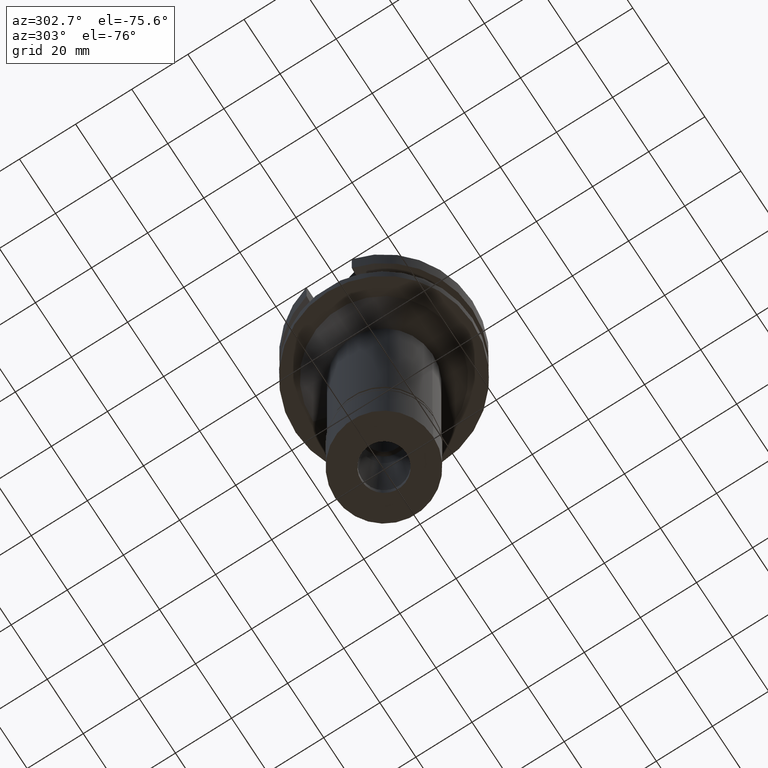
[diagram: clean part render]
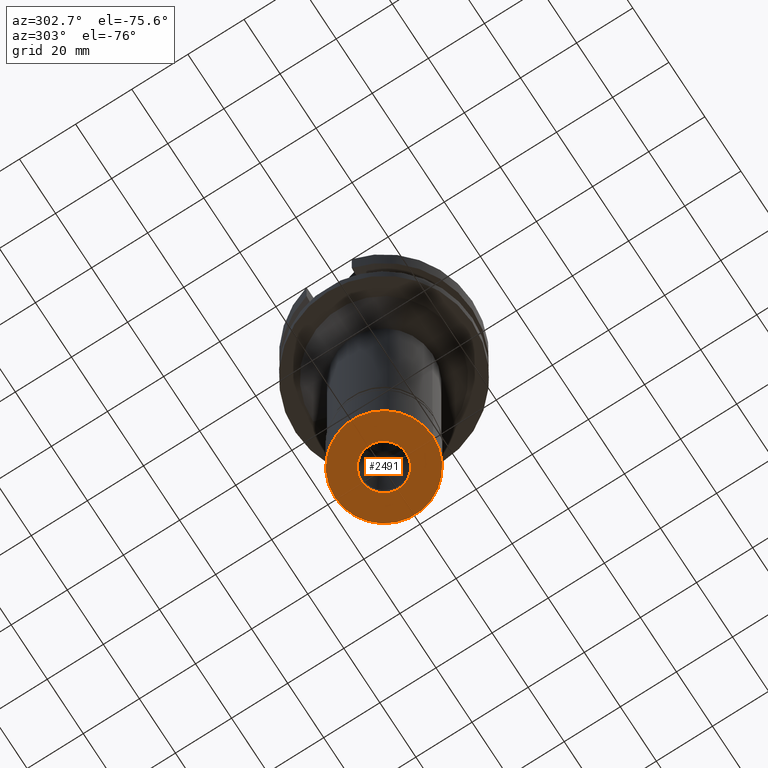
[diagram: same view with one face highlighted and labeled with its STEP entity id]
A machine part, auxiliary view. The second image highlights one B-rep face of the part: STEP entity #2491.
In plain terms, the highlighted planar face has unit normal (0, 0, -1).
Its self-contained STEP definition (entity closure, byte-faithful):
#140 = EDGE_CURVE ( 'NONE', #231, #1150, #2655, .T. ) ;
#227 = CARTESIAN_POINT ( 'NONE',  ( 0.0000000000000000000, 0.0000000000000000000, -26.70000000000000284 ) ) ;
#230 = AXIS2_PLACEMENT_3D ( 'NONE', #1076, #2249, #559 ) ;
#231 = VERTEX_POINT ( 'NONE', #1814 ) ;
#413 = EDGE_CURVE ( 'NONE', #1802, #2029, #2802, .T. ) ;
#435 = DIRECTION ( 'NONE',  ( 0.0000000000000000000, 1.000000000000000000, 0.0000000000000000000 ) ) ;
#559 = DIRECTION ( 'NONE',  ( 0.0000000000000000000, -1.000000000000000000, 0.0000000000000000000 ) ) ;
#563 = ORIENTED_EDGE ( 'NONE', *, *, #808, .F. ) ;
#574 = DIRECTION ( 'NONE',  ( 0.0000000000000000000, 0.0000000000000000000, -1.000000000000000000 ) ) ;
#599 = AXIS2_PLACEMENT_3D ( 'NONE', #1122, #1343, #1107 ) ;
#600 = CIRCLE ( 'NONE', #755, 17.50000000000000000 ) ;
#755 = AXIS2_PLACEMENT_3D ( 'NONE', #1786, #2744, #1522 ) ;
#789 = EDGE_CURVE ( 'NONE', #2029, #1802, #2953, .T. ) ;
#808 = EDGE_CURVE ( 'NONE', #1150, #231, #600, .T. ) ;
#859 = ORIENTED_EDGE ( 'NONE', *, *, #140, .F. ) ;
#866 = CARTESIAN_POINT ( 'NONE',  ( 0.0000000000000000000, -8.000000000000000000, -26.70000000000000284 ) ) ;
#967 = DIRECTION ( 'NONE',  ( 0.0000000000000000000, 0.0000000000000000000, -1.000000000000000000 ) ) ;
#1076 = CARTESIAN_POINT ( 'NONE',  ( 0.0000000000000000000, 0.0000000000000000000, -26.70000000000000284 ) ) ;
#1107 = DIRECTION ( 'NONE',  ( 0.0000000000000000000, -1.000000000000000000, 0.0000000000000000000 ) ) ;
#1122 = CARTESIAN_POINT ( 'NONE',  ( 0.0000000000000000000, 0.0000000000000000000, -26.70000000000000284 ) ) ;
#1127 = EDGE_LOOP ( 'NONE', ( #563, #859 ) ) ;
#1150 = VERTEX_POINT ( 'NONE', #1279 ) ;
#1220 = ORIENTED_EDGE ( 'NONE', *, *, #413, .F. ) ;
#1279 = CARTESIAN_POINT ( 'NONE',  ( 0.0000000000000000000, 17.50000000000000000, -26.70000000000000284 ) ) ;
#1343 = DIRECTION ( 'NONE',  ( 0.0000000000000000000, 0.0000000000000000000, 1.000000000000000000 ) ) ;
#1426 = CARTESIAN_POINT ( 'NONE',  ( 0.0000000000000000000, 8.000000000000000000, -26.70000000000000284 ) ) ;
#1452 = AXIS2_PLACEMENT_3D ( 'NONE', #227, #967, #435 ) ;
#1506 = DIRECTION ( 'NONE',  ( 0.0000000000000000000, -1.000000000000000000, 0.0000000000000000000 ) ) ;
#1522 = DIRECTION ( 'NONE',  ( 0.0000000000000000000, 1.000000000000000000, 0.0000000000000000000 ) ) ;
#1786 = CARTESIAN_POINT ( 'NONE',  ( 0.0000000000000000000, 0.0000000000000000000, -26.70000000000000284 ) ) ;
#1788 = EDGE_LOOP ( 'NONE', ( #1220, #2321 ) ) ;
#1802 = VERTEX_POINT ( 'NONE', #1426 ) ;
#1814 = CARTESIAN_POINT ( 'NONE',  ( 0.0000000000000000000, -17.50000000000000000, -26.70000000000000284 ) ) ;
#2029 = VERTEX_POINT ( 'NONE', #866 ) ;
#2249 = DIRECTION ( 'NONE',  ( 0.0000000000000000000, 0.0000000000000000000, -1.000000000000000000 ) ) ;
#2265 = FACE_BOUND ( 'NONE', #1788, .T. ) ;
#2321 = ORIENTED_EDGE ( 'NONE', *, *, #789, .F. ) ;
#2491 = ADVANCED_FACE ( 'NONE', ( #2681, #2265 ), #2938, .T. ) ;
#2655 = CIRCLE ( 'NONE', #599, 17.50000000000000000 ) ;
#2681 = FACE_OUTER_BOUND ( 'NONE', #1127, .T. ) ;
#2728 = CARTESIAN_POINT ( 'NONE',  ( 0.0000000000000000000, 0.0000000000000000000, -26.70000000000000284 ) ) ;
#2744 = DIRECTION ( 'NONE',  ( 0.0000000000000000000, 0.0000000000000000000, 1.000000000000000000 ) ) ;
#2802 = CIRCLE ( 'NONE', #1452, 8.000000000000000000 ) ;
#2938 = PLANE ( 'NONE',  #230 ) ;
#2953 = CIRCLE ( 'NONE', #3050, 8.000000000000000000 ) ;
#3050 = AXIS2_PLACEMENT_3D ( 'NONE', #2728, #574, #1506 ) ;